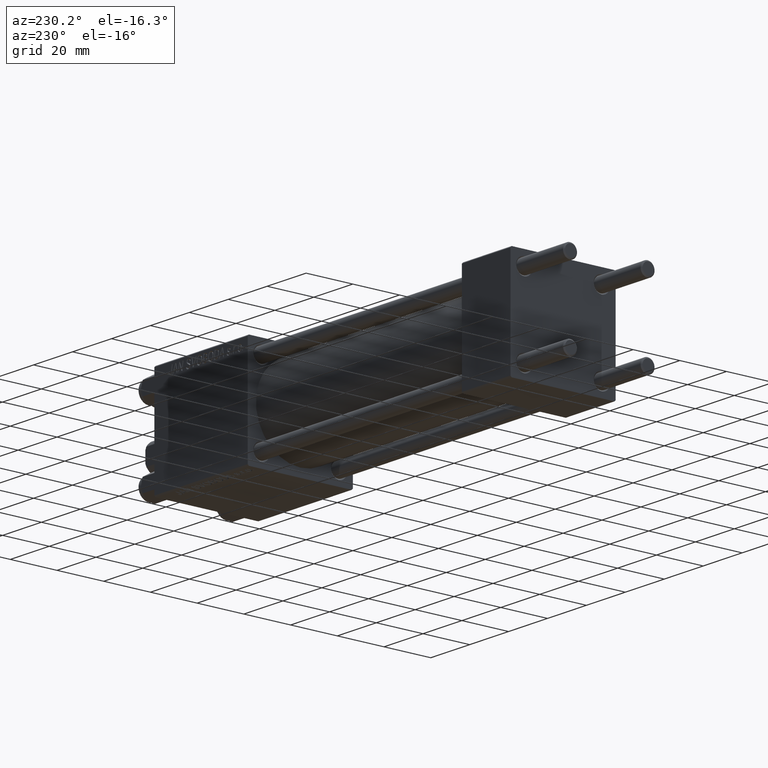
[diagram: clean part render]
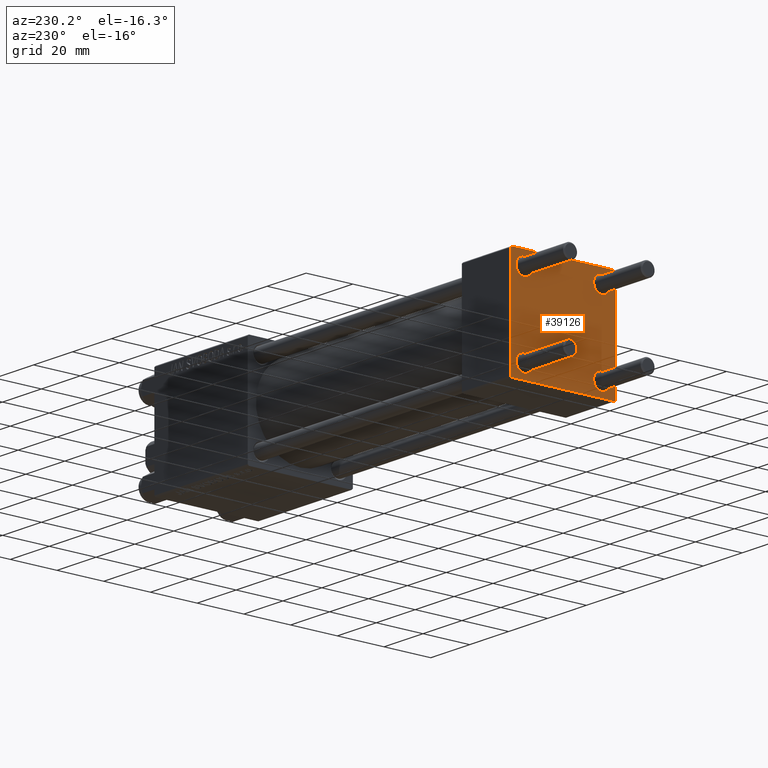
[diagram: same view with one face highlighted and labeled with its STEP entity id]
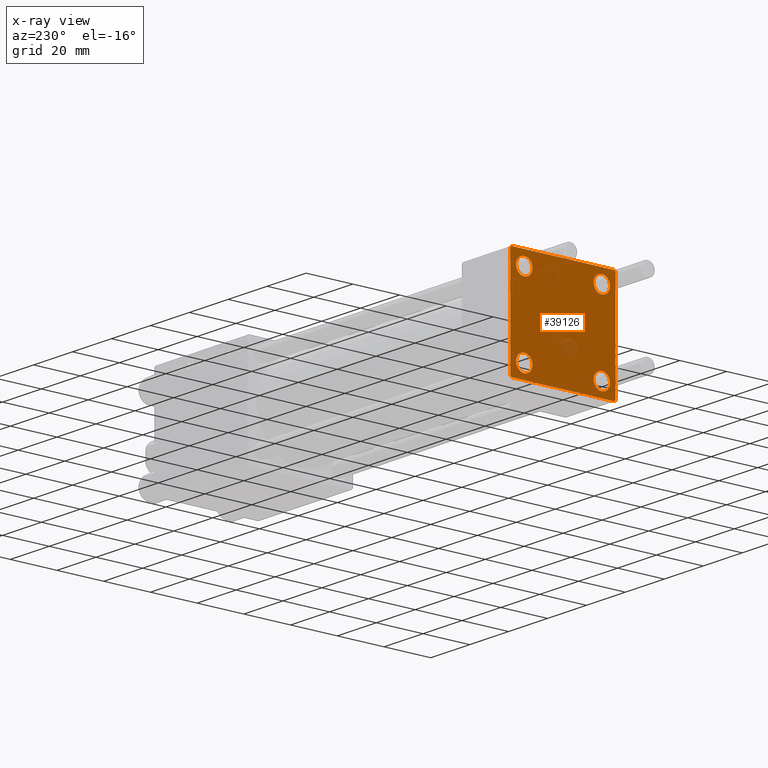
[diagram: x-ray of the same camera — body ghosted, the highlighted face saturated]
A machine part, auxiliary view. The second image highlights one B-rep face of the part: STEP entity #39126.
The next image is the same camera in x-ray: the body ghosted, the highlighted face saturated — about 2% of this face is hidden behind the body in this view.
In plain terms, the highlighted planar face has unit normal (-1, 0, 0).
Its self-contained STEP definition (entity closure, byte-faithful):
#94 = AXIS2_PLACEMENT_3D ( 'NONE', #6240, #13300, #5730 ) ;
#214 = CARTESIAN_POINT ( 'NONE',  ( -0.000000000000000000, -22.24999999999984013, 22.25000000000015277 ) ) ;
#500 = CARTESIAN_POINT ( 'NONE',  ( 0.000000000000000000, 22.50000000000000000, 22.50000000000000355 ) ) ;
#2802 = ORIENTED_EDGE ( 'NONE', *, *, #14889, .F. ) ;
#3323 = CIRCLE ( 'NONE', #94, 3.499999999999996003 ) ;
#4163 = VERTEX_POINT ( 'NONE', #11870 ) ;
#4232 = VECTOR ( 'NONE', #6899, 1000.000000000000114 ) ;
#4915 = DIRECTION ( 'NONE',  ( 1.000000000000000000, -0.000000000000000000, 0.000000000000000000 ) ) ;
#4947 = CARTESIAN_POINT ( 'NONE',  ( 0.000000000000000000, 21.99999999999999289, 22.50000000000000355 ) ) ;
#5730 = DIRECTION ( 'NONE',  ( 0.000000000000000000, 0.000000000000000000, 1.000000000000000000 ) ) ;
#6111 = CARTESIAN_POINT ( 'NONE',  ( 0.000000000000000000, 16.59999999999999787, 20.10000000000000142 ) ) ;
#6240 = CARTESIAN_POINT ( 'NONE',  ( 0.000000000000000000, 16.59999999999999787, -16.60000000000000497 ) ) ;
#6377 = VERTEX_POINT ( 'NONE', #16289 ) ;
#6829 = DIRECTION ( 'NONE',  ( 0.000000000000000000, 0.000000000000000000, 1.000000000000000000 ) ) ;
#6899 = DIRECTION ( 'NONE',  ( 0.000000000000000000, 0.7071067811865474617, -0.7071067811865474617 ) ) ;
#6940 = CARTESIAN_POINT ( 'NONE',  ( 0.000000000000000000, -22.50000000000000000, 22.50000000000000000 ) ) ;
#6963 = VECTOR ( 'NONE', #42852, 1000.000000000000000 ) ;
#7186 = LINE ( 'NONE', #6940, #30654 ) ;
#7392 = VERTEX_POINT ( 'NONE', #16482 ) ;
#7534 = LINE ( 'NONE', #214, #45613 ) ;
#7572 = LINE ( 'NONE', #39073, #6963 ) ;
#7830 = VERTEX_POINT ( 'NONE', #6111 ) ;
#8669 = CARTESIAN_POINT ( 'NONE',  ( 0.000000000000000000, -22.25000000000014566, -22.24999999999984013 ) ) ;
#9160 = AXIS2_PLACEMENT_3D ( 'NONE', #31027, #45913, #22731 ) ;
#9871 = AXIS2_PLACEMENT_3D ( 'NONE', #20076, #4915, #42500 ) ;
#10606 = CARTESIAN_POINT ( 'NONE',  ( 0.000000000000000000, 16.59999999999999787, 16.60000000000000497 ) ) ;
#10863 = DIRECTION ( 'NONE',  ( 1.000000000000000000, -0.000000000000000000, 0.000000000000000000 ) ) ;
#10950 = EDGE_LOOP ( 'NONE', ( #42810, #14735 ) ) ;
#11073 = DIRECTION ( 'NONE',  ( -0.000000000000000000, 0.7071067811865525687, 0.7071067811865425767 ) ) ;
#11224 = DIRECTION ( 'NONE',  ( -1.000000000000000000, 0.000000000000000000, -0.000000000000000000 ) ) ;
#11870 = CARTESIAN_POINT ( 'NONE',  ( 0.000000000000000000, -21.99999999999997868, 22.50000000000000000 ) ) ;
#12197 = DIRECTION ( 'NONE',  ( 0.000000000000000000, -0.7071067811865426878, 0.7071067811865524577 ) ) ;
#12475 = ORIENTED_EDGE ( 'NONE', *, *, #16101, .T. ) ;
#13070 = CARTESIAN_POINT ( 'NONE',  ( 0.000000000000000000, -16.59999999999999076, -16.60000000000000853 ) ) ;
#13300 = DIRECTION ( 'NONE',  ( 1.000000000000000000, -0.000000000000000000, 0.000000000000000000 ) ) ;
#13514 = EDGE_CURVE ( 'NONE', #14346, #22087, #40904, .T. ) ;
#14136 = EDGE_CURVE ( 'NONE', #26662, #6377, #7186, .T. ) ;
#14346 = VERTEX_POINT ( 'NONE', #20050 ) ;
#14651 = CARTESIAN_POINT ( 'NONE',  ( 0.000000000000000000, -16.59999999999999076, -16.60000000000000853 ) ) ;
#14735 = ORIENTED_EDGE ( 'NONE', *, *, #24810, .T. ) ;
#14889 = EDGE_CURVE ( 'NONE', #30211, #4163, #35041, .T. ) ;
#14976 = CARTESIAN_POINT ( 'NONE',  ( 0.000000000000000000, -21.99999999999997158, -22.50000000000000711 ) ) ;
#15625 = CIRCLE ( 'NONE', #9160, 3.499999999999996003 ) ;
#15883 = EDGE_CURVE ( 'NONE', #28719, #25931, #41982, .T. ) ;
#15941 = AXIS2_PLACEMENT_3D ( 'NONE', #42148, #30058, #18975 ) ;
#16101 = EDGE_CURVE ( 'NONE', #27303, #7392, #3323, .T. ) ;
#16289 = CARTESIAN_POINT ( 'NONE',  ( 0.000000000000000000, -22.50000000000000000, -21.99999999999997158 ) ) ;
#16482 = CARTESIAN_POINT ( 'NONE',  ( 0.000000000000000000, 16.59999999999999787, -20.10000000000000142 ) ) ;
#17698 = CARTESIAN_POINT ( 'NONE',  ( 0.000000000000000000, 22.50000000000000000, 22.50000000000000355 ) ) ;
#18370 = CIRCLE ( 'NONE', #21613, 3.499999999999996003 ) ;
#18800 = FACE_BOUND ( 'NONE', #39580, .T. ) ;
#18863 = ORIENTED_EDGE ( 'NONE', *, *, #13514, .T. ) ;
#18935 = DIRECTION ( 'NONE',  ( 1.000000000000000000, -0.000000000000000000, 0.000000000000000000 ) ) ;
#18975 = DIRECTION ( 'NONE',  ( 0.000000000000000000, 0.000000000000000000, 1.000000000000000000 ) ) ;
#19154 = CARTESIAN_POINT ( 'NONE',  ( 0.000000000000000000, -16.59999999999999076, 13.10000000000001030 ) ) ;
#20050 = CARTESIAN_POINT ( 'NONE',  ( 0.000000000000000000, 21.99999999999999289, -22.49999999999999645 ) ) ;
#20076 = CARTESIAN_POINT ( 'NONE',  ( 0.000000000000000000, -16.59999999999999076, 16.60000000000000853 ) ) ;
#20230 = EDGE_CURVE ( 'NONE', #22087, #6377, #43430, .T. ) ;
#20467 = CIRCLE ( 'NONE', #47807, 3.499999999999996003 ) ;
#21491 = LINE ( 'NONE', #17698, #48675 ) ;
#21613 = AXIS2_PLACEMENT_3D ( 'NONE', #45160, #18935, #34311 ) ;
#22087 = VERTEX_POINT ( 'NONE', #14976 ) ;
#22094 = ORIENTED_EDGE ( 'NONE', *, *, #46653, .T. ) ;
#22294 = ORIENTED_EDGE ( 'NONE', *, *, #25690, .T. ) ;
#22642 = VECTOR ( 'NONE', #24435, 1000.000000000000000 ) ;
#22731 = DIRECTION ( 'NONE',  ( 0.000000000000000000, 0.000000000000000000, 1.000000000000000000 ) ) ;
#23301 = ORIENTED_EDGE ( 'NONE', *, *, #45844, .T. ) ;
#24435 = DIRECTION ( 'NONE',  ( 0.000000000000000000, -1.000000000000000000, -7.709882115452476934E-17 ) ) ;
#24442 = DIRECTION ( 'NONE',  ( 0.000000000000000000, 0.000000000000000000, 1.000000000000000000 ) ) ;
#24810 = EDGE_CURVE ( 'NONE', #32492, #7830, #35707, .T. ) ;
#24935 = DIRECTION ( 'NONE',  ( 1.000000000000000000, -0.000000000000000000, 0.000000000000000000 ) ) ;
#25170 = CIRCLE ( 'NONE', #9871, 3.499999999999996003 ) ;
#25690 = EDGE_CURVE ( 'NONE', #25931, #28719, #20467, .T. ) ;
#25800 = VECTOR ( 'NONE', #43684, 1000.000000000000000 ) ;
#25818 = CARTESIAN_POINT ( 'NONE',  ( 0.000000000000000000, 22.24999999999999645, 22.24999999999999645 ) ) ;
#25863 = PLANE ( 'NONE',  #33670 ) ;
#25871 = AXIS2_PLACEMENT_3D ( 'NONE', #13070, #24935, #24442 ) ;
#25931 = VERTEX_POINT ( 'NONE', #28466 ) ;
#26066 = LINE ( 'NONE', #25818, #4232 ) ;
#26257 = DIRECTION ( 'NONE',  ( 0.000000000000000000, 0.000000000000000000, 1.000000000000000000 ) ) ;
#26580 = EDGE_CURVE ( 'NONE', #38500, #49184, #21491, .T. ) ;
#26662 = VERTEX_POINT ( 'NONE', #33328 ) ;
#27303 = VERTEX_POINT ( 'NONE', #38118 ) ;
#27426 = CARTESIAN_POINT ( 'NONE',  ( 0.000000000000000000, 16.59999999999999787, 13.10000000000000675 ) ) ;
#28466 = CARTESIAN_POINT ( 'NONE',  ( 0.000000000000000000, -16.59999999999999076, -20.10000000000000497 ) ) ;
#28719 = VERTEX_POINT ( 'NONE', #28955 ) ;
#28947 = CARTESIAN_POINT ( 'NONE',  ( 0.000000000000000000, 22.50000000000000000, 21.99999999999999645 ) ) ;
#28955 = CARTESIAN_POINT ( 'NONE',  ( 0.000000000000000000, -16.59999999999999076, -13.10000000000001030 ) ) ;
#29377 = ORIENTED_EDGE ( 'NONE', *, *, #33058, .T. ) ;
#29888 = FACE_BOUND ( 'NONE', #41793, .T. ) ;
#30058 = DIRECTION ( 'NONE',  ( 1.000000000000000000, -0.000000000000000000, 0.000000000000000000 ) ) ;
#30137 = DIRECTION ( 'NONE',  ( -0.000000000000000000, 0.000000000000000000, 1.000000000000000000 ) ) ;
#30211 = VERTEX_POINT ( 'NONE', #4947 ) ;
#30625 = DIRECTION ( 'NONE',  ( 0.000000000000000000, 0.000000000000000000, -1.000000000000000000 ) ) ;
#30654 = VECTOR ( 'NONE', #30625, 1000.000000000000000 ) ;
#30950 = EDGE_LOOP ( 'NONE', ( #12475, #33305 ) ) ;
#31027 = CARTESIAN_POINT ( 'NONE',  ( 0.000000000000000000, -16.59999999999999076, 16.60000000000000853 ) ) ;
#32103 = CARTESIAN_POINT ( 'NONE',  ( 0.000000000000000000, 22.50000000000000000, -22.49999999999999645 ) ) ;
#32435 = ORIENTED_EDGE ( 'NONE', *, *, #14136, .F. ) ;
#32492 = VERTEX_POINT ( 'NONE', #27426 ) ;
#32973 = EDGE_CURVE ( 'NONE', #49184, #14346, #7572, .T. ) ;
#33058 = EDGE_CURVE ( 'NONE', #26662, #4163, #7534, .T. ) ;
#33072 = DIRECTION ( 'NONE',  ( 0.000000000000000000, 0.000000000000000000, -1.000000000000000000 ) ) ;
#33305 = ORIENTED_EDGE ( 'NONE', *, *, #34504, .T. ) ;
#33328 = CARTESIAN_POINT ( 'NONE',  ( 0.000000000000000000, -22.50000000000000000, 22.00000000000000000 ) ) ;
#33670 = AXIS2_PLACEMENT_3D ( 'NONE', #49064, #11224, #30137 ) ;
#33678 = ORIENTED_EDGE ( 'NONE', *, *, #32973, .T. ) ;
#34065 = VECTOR ( 'NONE', #12197, 1000.000000000000000 ) ;
#34311 = DIRECTION ( 'NONE',  ( 0.000000000000000000, 0.000000000000000000, 1.000000000000000000 ) ) ;
#34504 = EDGE_CURVE ( 'NONE', #7392, #27303, #48934, .T. ) ;
#34701 = CARTESIAN_POINT ( 'NONE',  ( 0.000000000000000000, 22.50000000000000000, -21.99999999999996803 ) ) ;
#35041 = LINE ( 'NONE', #500, #22642 ) ;
#35707 = CIRCLE ( 'NONE', #45359, 3.499999999999996003 ) ;
#37705 = FACE_OUTER_BOUND ( 'NONE', #49878, .T. ) ;
#38118 = CARTESIAN_POINT ( 'NONE',  ( 0.000000000000000000, 16.59999999999999787, -13.10000000000000675 ) ) ;
#38500 = VERTEX_POINT ( 'NONE', #28947 ) ;
#38846 = CARTESIAN_POINT ( 'NONE',  ( 0.000000000000000000, -16.59999999999999076, 20.10000000000000853 ) ) ;
#39073 = CARTESIAN_POINT ( 'NONE',  ( 0.000000000000000000, 22.25000000000014566, -22.24999999999984013 ) ) ;
#39126 = ADVANCED_FACE ( 'NONE', ( #29888, #18800, #49567, #45267, #37705 ), #25863, .T. ) ;
#39580 = EDGE_LOOP ( 'NONE', ( #43879, #22294 ) ) ;
#40477 = ORIENTED_EDGE ( 'NONE', *, *, #41993, .T. ) ;
#40491 = EDGE_CURVE ( 'NONE', #7830, #32492, #18370, .T. ) ;
#40904 = LINE ( 'NONE', #32103, #25800 ) ;
#41362 = DIRECTION ( 'NONE',  ( 1.000000000000000000, -0.000000000000000000, 0.000000000000000000 ) ) ;
#41793 = EDGE_LOOP ( 'NONE', ( #23301, #22094 ) ) ;
#41982 = CIRCLE ( 'NONE', #25871, 3.499999999999996003 ) ;
#41993 = EDGE_CURVE ( 'NONE', #30211, #38500, #26066, .T. ) ;
#42148 = CARTESIAN_POINT ( 'NONE',  ( 0.000000000000000000, 16.59999999999999787, -16.60000000000000497 ) ) ;
#42500 = DIRECTION ( 'NONE',  ( 0.000000000000000000, 0.000000000000000000, 1.000000000000000000 ) ) ;
#42810 = ORIENTED_EDGE ( 'NONE', *, *, #40491, .T. ) ;
#42852 = DIRECTION ( 'NONE',  ( -0.000000000000000000, -0.7071067811865426878, -0.7071067811865524577 ) ) ;
#43430 = LINE ( 'NONE', #8669, #34065 ) ;
#43684 = DIRECTION ( 'NONE',  ( 0.000000000000000000, -1.000000000000000000, -2.312964634635742957E-16 ) ) ;
#43879 = ORIENTED_EDGE ( 'NONE', *, *, #15883, .T. ) ;
#43996 = ORIENTED_EDGE ( 'NONE', *, *, #20230, .T. ) ;
#45160 = CARTESIAN_POINT ( 'NONE',  ( 0.000000000000000000, 16.59999999999999787, 16.60000000000000497 ) ) ;
#45267 = FACE_BOUND ( 'NONE', #10950, .T. ) ;
#45359 = AXIS2_PLACEMENT_3D ( 'NONE', #10606, #41362, #6829 ) ;
#45613 = VECTOR ( 'NONE', #11073, 999.9999999999998863 ) ;
#45844 = EDGE_CURVE ( 'NONE', #49621, #48170, #15625, .T. ) ;
#45913 = DIRECTION ( 'NONE',  ( 1.000000000000000000, -0.000000000000000000, 0.000000000000000000 ) ) ;
#46653 = EDGE_CURVE ( 'NONE', #48170, #49621, #25170, .T. ) ;
#47807 = AXIS2_PLACEMENT_3D ( 'NONE', #14651, #10863, #26257 ) ;
#48142 = ORIENTED_EDGE ( 'NONE', *, *, #26580, .T. ) ;
#48170 = VERTEX_POINT ( 'NONE', #19154 ) ;
#48675 = VECTOR ( 'NONE', #33072, 1000.000000000000000 ) ;
#48934 = CIRCLE ( 'NONE', #15941, 3.499999999999996003 ) ;
#49064 = CARTESIAN_POINT ( 'NONE',  ( 0.000000000000000000, 0.000000000000000000, 0.000000000000000000 ) ) ;
#49184 = VERTEX_POINT ( 'NONE', #34701 ) ;
#49567 = FACE_BOUND ( 'NONE', #30950, .T. ) ;
#49621 = VERTEX_POINT ( 'NONE', #38846 ) ;
#49878 = EDGE_LOOP ( 'NONE', ( #48142, #33678, #18863, #43996, #32435, #29377, #2802, #40477 ) ) ;